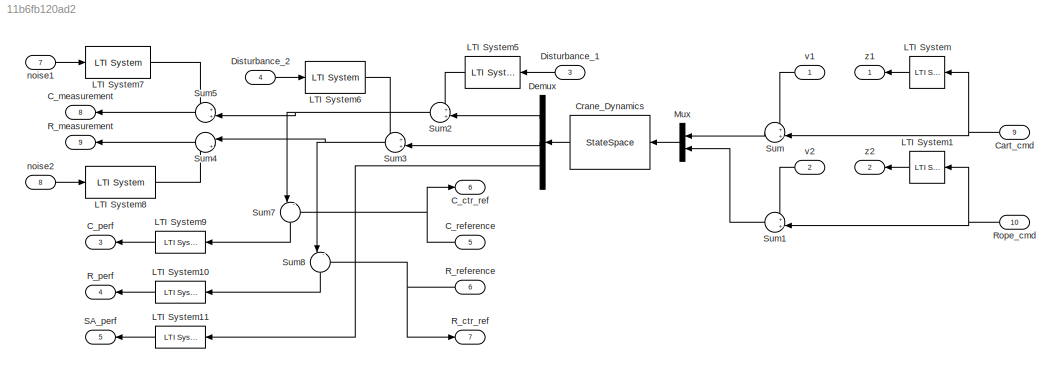
MODEL slx_11b6fb120ad2
KIND model
CONFIG AbsTol = auto
CONFIG EnableMultiTasking = off
CONFIG FixedStep = auto
CONFIG MaxStep = auto
CONFIG MinStep = auto
CONFIG RelTol = 1e-3
CONFIG SampleTimeConstraint = Unconstrained
CONFIG Solver = VariableStepAuto
CONFIG SolverName = VariableStepAuto
CONFIG StartTime = 0.0
CONFIG StopTime = 10.0
BLOCK [Outport] C_ctr_ref
  IconDisplay = Port number
  Port = 6
BLOCK [Outport] C_measurement
  IconDisplay = Port number
  Port = 8
BLOCK [Outport] C_perf
  IconDisplay = Port number
  Port = 3
BLOCK [Inport] C_reference
  IconDisplay = Port number
  Port = 5
BLOCK [Inport] Cart_cmd
  IconDisplay = Port number
  Port = 9
BLOCK [StateSpace] Crane_Dynamics
  A = A_new
  B = B_new
  C = C_new
  D = D_new
  Ports = [1, 1]
  X0 = 0
BLOCK [Demux] Demux
  DisplayOption = bar
  Outputs = 3
  Ports = [1, 3]
BLOCK [Inport] Disturbance_1
  IconDisplay = Port number
  Port = 3
BLOCK [Inport] Disturbance_2
  IconDisplay = Port number
  Port = 4
BLOCK [Reference] LTI System  REF=cstblocks/LTI System
  Ports = [1, 1]
  SourceBlock = cstblocks/LTI System
  SourceProductBaseCode = CT
  SourceProductName = Control System Toolbox
  SourceType = LTI Block
BLOCK [Reference] LTI System1  REF=cstblocks/LTI System
  Ports = [1, 1]
  SourceBlock = cstblocks/LTI System
  SourceProductBaseCode = CT
  SourceProductName = Control System Toolbox
  SourceType = LTI Block
BLOCK [Reference] LTI System10  REF=cstblocks/LTI System
  Ports = [1, 1]
  SourceBlock = cstblocks/LTI System
  SourceProductBaseCode = CT
  SourceProductName = Control System Toolbox
  SourceType = LTI Block
BLOCK [Reference] LTI System11  REF=cstblocks/LTI System
  Ports = [1, 1]
  SourceBlock = cstblocks/LTI System
  SourceProductBaseCode = CT
  SourceProductName = Control System Toolbox
  SourceType = LTI Block
BLOCK [Reference] LTI System5  REF=cstblocks/LTI System
  Ports = [1, 1]
  SourceBlock = cstblocks/LTI System
  SourceProductBaseCode = CT
  SourceProductName = Control System Toolbox
  SourceType = LTI Block
BLOCK [Reference] LTI System6  REF=cstblocks/LTI System
  Ports = [1, 1]
  SourceBlock = cstblocks/LTI System
  SourceProductBaseCode = CT
  SourceProductName = Control System Toolbox
  SourceType = LTI Block
BLOCK [Reference] LTI System7  REF=cstblocks/LTI System
  Ports = [1, 1]
  SourceBlock = cstblocks/LTI System
  SourceProductBaseCode = CT
  SourceProductName = Control System Toolbox
  SourceType = LTI Block
BLOCK [Reference] LTI System8  REF=cstblocks/LTI System
  Ports = [1, 1]
  SourceBlock = cstblocks/LTI System
  SourceProductBaseCode = CT
  SourceProductName = Control System Toolbox
  SourceType = LTI Block
BLOCK [Reference] LTI System9  REF=cstblocks/LTI System
  Ports = [1, 1]
  SourceBlock = cstblocks/LTI System
  SourceProductBaseCode = CT
  SourceProductName = Control System Toolbox
  SourceType = LTI Block
BLOCK [Mux] Mux
  DisplayOption = bar
  Inputs = 2
  Ports = [2, 1]
BLOCK [Outport] R_ctr_ref
  IconDisplay = Port number
  Port = 7
BLOCK [Outport] R_measurement
  IconDisplay = Port number
  Port = 9
BLOCK [Outport] R_perf
  IconDisplay = Port number
  Port = 4
BLOCK [Inport] R_reference
  IconDisplay = Port number
  Port = 6
BLOCK [Inport] Rope_cmd
  IconDisplay = Port number
  Port = 10
BLOCK [Outport] SA_perf
  IconDisplay = Port number
  Port = 5
BLOCK [Sum] Sum
  IconShape = round
  InputSameDT = off
  Inputs = ++|
  OutDataTypeStr = Inherit: Inherit via internal rule
  Ports = [2, 1]
  SaturateOnIntegerOverflow = off
BLOCK [Sum] Sum1
  IconShape = round
  InputSameDT = off
  Inputs = ++|
  OutDataTypeStr = Inherit: Inherit via internal rule
  Ports = [2, 1]
  SaturateOnIntegerOverflow = off
BLOCK [Sum] Sum2
  IconShape = round
  InputSameDT = off
  Inputs = ++|
  OutDataTypeStr = Inherit: Inherit via internal rule
  Ports = [2, 1]
  SaturateOnIntegerOverflow = off
BLOCK [Sum] Sum3
  IconShape = round
  InputSameDT = off
  Inputs = ++|
  OutDataTypeStr = Inherit: Inherit via internal rule
  Ports = [2, 1]
  SaturateOnIntegerOverflow = off
BLOCK [Sum] Sum4
  IconShape = round
  InputSameDT = off
  Inputs = |++
  OutDataTypeStr = Inherit: Inherit via internal rule
  Ports = [2, 1]
  SaturateOnIntegerOverflow = off
BLOCK [Sum] Sum5
  IconShape = round
  InputSameDT = off
  Inputs = ++|
  OutDataTypeStr = Inherit: Inherit via internal rule
  Ports = [2, 1]
  SaturateOnIntegerOverflow = off
BLOCK [Sum] Sum7
  IconShape = round
  InputSameDT = off
  Inputs = |-+
  OutDataTypeStr = Inherit: Inherit via internal rule
  Ports = [2, 1]
  SaturateOnIntegerOverflow = off
BLOCK [Sum] Sum8
  IconShape = round
  InputSameDT = off
  Inputs = |-+
  OutDataTypeStr = Inherit: Inherit via internal rule
  Ports = [2, 1]
  SaturateOnIntegerOverflow = off
BLOCK [Inport] noise1
  IconDisplay = Port number
  Port = 7
BLOCK [Inport] noise2
  IconDisplay = Port number
  Port = 8
BLOCK [Inport] v1
  IconDisplay = Port number
BLOCK [Inport] v2
  IconDisplay = Port number
  Port = 2
BLOCK [Outport] z1
  IconDisplay = Port number
BLOCK [Outport] z2
  IconDisplay = Port number
  Port = 2
NET C_reference:1 -> C_ctr_ref:1, Sum7:2
NET Cart_cmd:1 -> LTI System:1, Sum:2
LINE Crane_Dynamics:1 -> Demux:1
LINE Demux:1 -> Sum2:2
LINE Demux:2 -> Sum3:2
LINE Demux:3 -> LTI System11:1
LINE Disturbance_1:1 -> LTI System5:1
LINE Disturbance_2:1 -> LTI System6:1
LINE LTI System10:1 -> R_perf:1
LINE LTI System11:1 -> SA_perf:1
LINE LTI System1:1 -> z2:1
LINE LTI System5:1 -> Sum2:1
LINE LTI System6:1 -> Sum3:1
LINE LTI System7:1 -> Sum5:1
LINE LTI System8:1 -> Sum4:2
LINE LTI System9:1 -> C_perf:1
LINE LTI System:1 -> z1:1
LINE Mux:1 -> Crane_Dynamics:1
NET R_reference:1 -> R_ctr_ref:1, Sum8:2
NET Rope_cmd:1 -> LTI System1:1, Sum1:2
LINE Sum1:1 -> Mux:2
NET Sum2:1 -> Sum5:2, Sum7:1
NET Sum3:1 -> Sum4:1, Sum8:1
LINE Sum4:1 -> R_measurement:1
LINE Sum5:1 -> C_measurement:1
LINE Sum7:1 -> LTI System9:1
LINE Sum8:1 -> LTI System10:1
LINE Sum:1 -> Mux:1
LINE noise1:1 -> LTI System7:1
LINE noise2:1 -> LTI System8:1
LINE v1:1 -> Sum:1
LINE v2:1 -> Sum1:1
note: NET lines group one-source signal fan-out (src -> all destinations, sorted); 1:1 wires keep LINE
